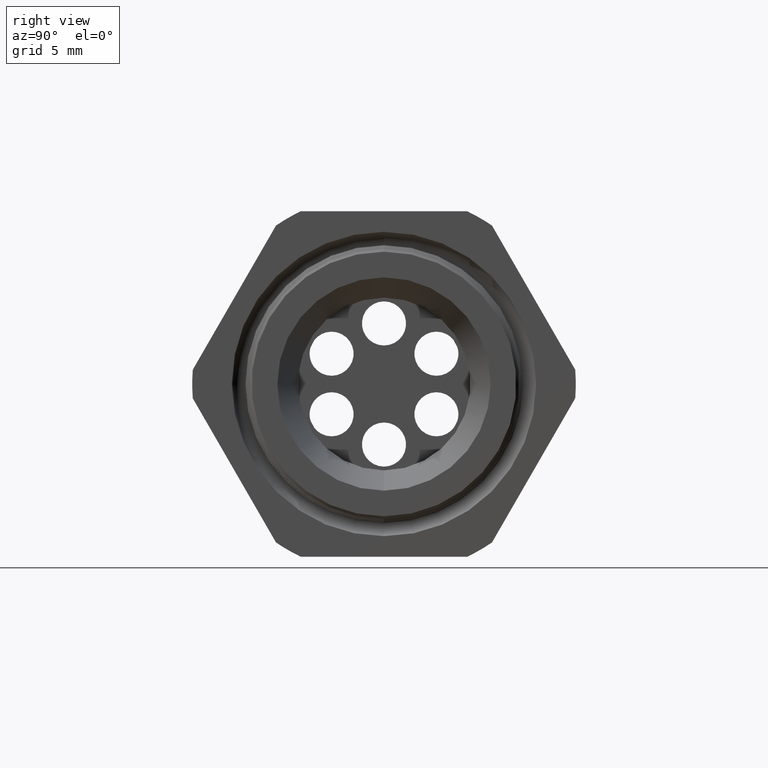
[diagram: clean part render]
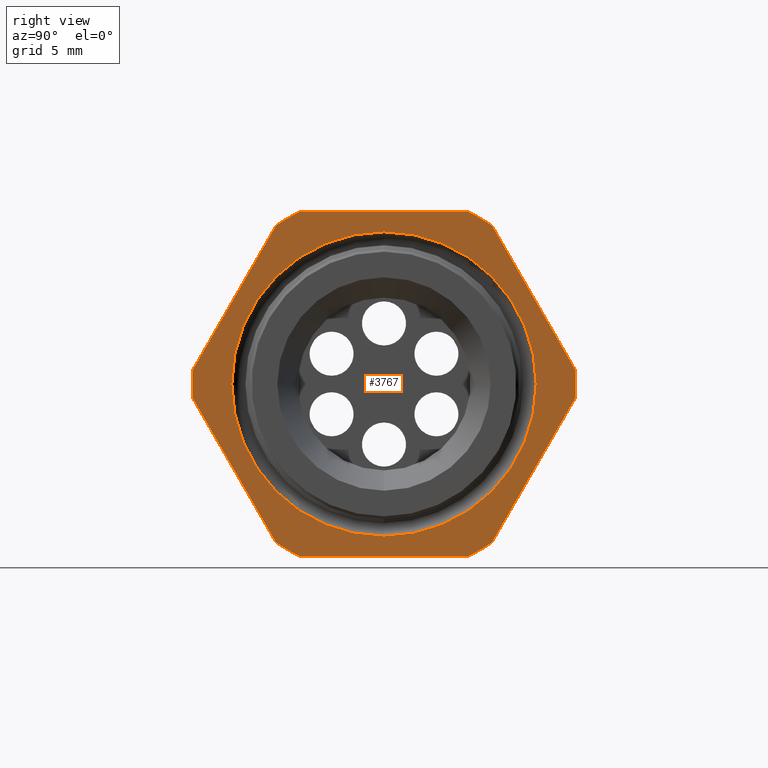
[diagram: same view with one face highlighted and labeled with its STEP entity id]
A machine part, right view. The second image highlights one B-rep face of the part: STEP entity #3767.
In plain terms, the highlighted planar face has unit normal (1, 0, 0).
Its self-contained STEP definition (entity closure, byte-faithful):
#1550 = CARTESIAN_POINT ( 'NONE',  ( -0.3100000000000000000, 0.0000000000000000000, 0.0000000000000000000 ) ) ;
#1551 = AXIS2_PLACEMENT_3D ( 'NONE', #1550, #1613, #1612 ) ;
#1552 = CIRCLE ( 'NONE', #1551, 0.5217000000000000500 ) ;
#1583 = CARTESIAN_POINT ( 'NONE',  ( -0.3100000000000000000, 0.5202473208008777700, -0.03890520787129494300 ) ) ;
#1584 = CARTESIAN_POINT ( 'NONE',  ( -0.3100000000000000000, 0.2938165587564948700, -0.4310947921287048800 ) ) ;
#1585 = DIRECTION ( 'NONE',  ( 0.0000000000000000000, 0.4999999999999998300, 0.8660254037844388200 ) ) ;
#1586 = VECTOR ( 'NONE', #1585, 39.37007874015748100 ) ;
#1587 = CARTESIAN_POINT ( 'NONE',  ( -0.3100000000000000000, 0.6420319397786861100, 0.1720319397786860800 ) ) ;
#1588 = LINE ( 'NONE', #1587, #1586 ) ;
#1589 = DIRECTION ( 'NONE',  ( 0.0000000000000000000, 0.0000000000000000000, -1.000000000000000000 ) ) ;
#1590 = DIRECTION ( 'NONE',  ( 1.000000000000000000, 0.0000000000000000000, 0.0000000000000000000 ) ) ;
#1591 = CARTESIAN_POINT ( 'NONE',  ( -0.3100000000000000000, 0.0000000000000000000, 0.0000000000000000000 ) ) ;
#1592 = AXIS2_PLACEMENT_3D ( 'NONE', #1591, #1590, #1589 ) ;
#1593 = CIRCLE ( 'NONE', #1592, 0.4140490524579808500 ) ;
#1594 = DIRECTION ( 'NONE',  ( 0.0000000000000000000, 0.0000000000000000000, -1.000000000000000000 ) ) ;
#1595 = DIRECTION ( 'NONE',  ( 1.000000000000000000, 0.0000000000000000000, 0.0000000000000000000 ) ) ;
#1596 = CARTESIAN_POINT ( 'NONE',  ( -0.3100000000000000000, 0.9399999999999999500, 0.0000000000000000000 ) ) ;
#1597 = AXIS2_PLACEMENT_3D ( 'NONE', #1596, #1595, #1594 ) ;
#1598 = PLANE ( 'NONE',  #1597 ) ;
#1599 = FACE_OUTER_BOUND ( 'NONE', #3772, .T. ) ;
#1600 = FACE_BOUND ( 'NONE', #3768, .T. ) ;
#1606 = CARTESIAN_POINT ( 'NONE',  ( -0.3100000000000000000, -0.5202473208008777700, 0.03890520787129464500 ) ) ;
#1607 = DIRECTION ( 'NONE',  ( 0.0000000000000000000, -0.4999999999999998300, -0.8660254037844388200 ) ) ;
#1608 = VECTOR ( 'NONE', #1607, 39.37007874015748100 ) ;
#1609 = CARTESIAN_POINT ( 'NONE',  ( -0.3100000000000000000, -0.1720319397786864200, 0.6420319397786858900 ) ) ;
#1610 = LINE ( 'NONE', #1609, #1608 ) ;
#1611 = CARTESIAN_POINT ( 'NONE',  ( -0.3100000000000000000, -0.2938165587564945900, 0.4310947921287050500 ) ) ;
#1612 = DIRECTION ( 'NONE',  ( 0.0000000000000000000, 0.0000000000000000000, -1.000000000000000000 ) ) ;
#1613 = DIRECTION ( 'NONE',  ( 1.000000000000000000, 0.0000000000000000000, 0.0000000000000000000 ) ) ;
#1638 = CARTESIAN_POINT ( 'NONE',  ( -0.3100000000000000000, 0.5202473208008776600, 0.03890520787129531800 ) ) ;
#1639 = DIRECTION ( 'NONE',  ( 0.0000000000000000000, 0.0000000000000000000, -1.000000000000000000 ) ) ;
#1640 = DIRECTION ( 'NONE',  ( 1.000000000000000000, 0.0000000000000000000, 0.0000000000000000000 ) ) ;
#1641 = CARTESIAN_POINT ( 'NONE',  ( -0.3100000000000000000, 0.0000000000000000000, 0.0000000000000000000 ) ) ;
#1642 = AXIS2_PLACEMENT_3D ( 'NONE', #1641, #1640, #1639 ) ;
#1643 = CIRCLE ( 'NONE', #1642, 0.5217000000000000500 ) ;
#1679 = CIRCLE ( 'NONE', #1736, 0.5217000000000000500 ) ;
#1698 = DIRECTION ( 'NONE',  ( 0.0000000000000000000, 0.0000000000000000000, -1.000000000000000000 ) ) ;
#1699 = DIRECTION ( 'NONE',  ( 1.000000000000000000, 0.0000000000000000000, 0.0000000000000000000 ) ) ;
#1700 = CARTESIAN_POINT ( 'NONE',  ( -0.3100000000000000000, 0.0000000000000000000, 0.0000000000000000000 ) ) ;
#1701 = AXIS2_PLACEMENT_3D ( 'NONE', #1700, #1699, #1698 ) ;
#1702 = CIRCLE ( 'NONE', #1701, 0.5217000000000000500 ) ;
#1708 = CARTESIAN_POINT ( 'NONE',  ( -0.3100000000000000000, 0.0000000000000000000, 0.0000000000000000000 ) ) ;
#1709 = AXIS2_PLACEMENT_3D ( 'NONE', #1708, #1771, #1770 ) ;
#1710 = CIRCLE ( 'NONE', #1709, 0.5217000000000000500 ) ;
#1711 = CARTESIAN_POINT ( 'NONE',  ( -0.3100000000000000000, 0.2938165587564947600, 0.4310947921287048800 ) ) ;
#1712 = DIRECTION ( 'NONE',  ( 0.0000000000000000000, -0.5000000000000001100, 0.8660254037844384900 ) ) ;
#1713 = VECTOR ( 'NONE', #1712, 39.37007874015748900 ) ;
#1714 = CARTESIAN_POINT ( 'NONE',  ( -0.3100000000000000000, 0.6420319397786862200, -0.1720319397786861700 ) ) ;
#1715 = LINE ( 'NONE', #1714, #1713 ) ;
#1716 = CARTESIAN_POINT ( 'NONE',  ( -0.3100000000000000000, 0.2264307620443831200, -0.4700000000000000300 ) ) ;
#1717 = DIRECTION ( 'NONE',  ( 0.0000000000000000000, 1.000000000000000000, 0.0000000000000000000 ) ) ;
#1718 = VECTOR ( 'NONE', #1717, 39.37007874015748100 ) ;
#1719 = CARTESIAN_POINT ( 'NONE',  ( -0.3100000000000000000, 0.9399999999999999500, -0.4700000000000000300 ) ) ;
#1720 = LINE ( 'NONE', #1719, #1718 ) ;
#1721 = CARTESIAN_POINT ( 'NONE',  ( -0.3100000000000000000, -0.2264307620443830900, -0.4700000000000000300 ) ) ;
#1722 = DIRECTION ( 'NONE',  ( 0.0000000000000000000, 0.0000000000000000000, -1.000000000000000000 ) ) ;
#1723 = DIRECTION ( 'NONE',  ( 1.000000000000000000, 0.0000000000000000000, 0.0000000000000000000 ) ) ;
#1724 = CARTESIAN_POINT ( 'NONE',  ( -0.3100000000000000000, 0.0000000000000000000, 0.0000000000000000000 ) ) ;
#1725 = AXIS2_PLACEMENT_3D ( 'NONE', #1724, #1723, #1722 ) ;
#1726 = CIRCLE ( 'NONE', #1725, 0.5217000000000000500 ) ;
#1727 = CARTESIAN_POINT ( 'NONE',  ( -0.3100000000000000000, -0.2938165587564942600, -0.4310947921287053300 ) ) ;
#1728 = DIRECTION ( 'NONE',  ( 0.0000000000000000000, 0.5000000000000001100, -0.8660254037844384900 ) ) ;
#1729 = VECTOR ( 'NONE', #1728, 39.37007874015748900 ) ;
#1730 = CARTESIAN_POINT ( 'NONE',  ( -0.3100000000000000000, -0.1720319397786861700, -0.6420319397786864400 ) ) ;
#1731 = LINE ( 'NONE', #1730, #1729 ) ;
#1732 = CARTESIAN_POINT ( 'NONE',  ( -0.3100000000000000000, -0.5202473208008777700, -0.03890520787129495000 ) ) ;
#1733 = DIRECTION ( 'NONE',  ( 0.0000000000000000000, 0.0000000000000000000, -1.000000000000000000 ) ) ;
#1734 = DIRECTION ( 'NONE',  ( 1.000000000000000000, 0.0000000000000000000, 0.0000000000000000000 ) ) ;
#1735 = CARTESIAN_POINT ( 'NONE',  ( -0.3100000000000000000, 0.0000000000000000000, 0.0000000000000000000 ) ) ;
#1736 = AXIS2_PLACEMENT_3D ( 'NONE', #1735, #1734, #1733 ) ;
#1764 = CARTESIAN_POINT ( 'NONE',  ( -0.3100000000000000000, -0.2264307620443835300, 0.4699999999999997000 ) ) ;
#1765 = DIRECTION ( 'NONE',  ( 0.0000000000000000000, -1.000000000000000000, 0.0000000000000000000 ) ) ;
#1766 = VECTOR ( 'NONE', #1765, 39.37007874015748100 ) ;
#1767 = CARTESIAN_POINT ( 'NONE',  ( -0.3100000000000000000, 0.9399999999999999500, 0.4699999999999999200 ) ) ;
#1768 = LINE ( 'NONE', #1767, #1766 ) ;
#1769 = CARTESIAN_POINT ( 'NONE',  ( -0.3100000000000000000, 0.2264307620443832800, 0.4699999999999999200 ) ) ;
#1770 = DIRECTION ( 'NONE',  ( 0.0000000000000000000, 0.0000000000000000000, -1.000000000000000000 ) ) ;
#1771 = DIRECTION ( 'NONE',  ( 1.000000000000000000, 0.0000000000000000000, 0.0000000000000000000 ) ) ;
#2637 = CARTESIAN_POINT ( 'NONE',  ( -0.3100000000000000000, 5.070638467826607500E-017, 0.4140490524579807900 ) ) ;
#2639 = CARTESIAN_POINT ( 'NONE',  ( -0.3100000000000000000, 0.0000000000000000000, -0.4140490524579807900 ) ) ;
#2640 = DIRECTION ( 'NONE',  ( 0.0000000000000000000, 0.0000000000000000000, -1.000000000000000000 ) ) ;
#2641 = DIRECTION ( 'NONE',  ( 1.000000000000000000, 0.0000000000000000000, 0.0000000000000000000 ) ) ;
#2642 = AXIS2_PLACEMENT_3D ( 'NONE', #2650, #2641, #2640 ) ;
#2643 = CIRCLE ( 'NONE', #2642, 0.4140490524579808500 ) ;
#2650 = CARTESIAN_POINT ( 'NONE',  ( -0.3100000000000000000, 0.0000000000000000000, 0.0000000000000000000 ) ) ;
#3760 = EDGE_CURVE ( 'NONE', #3841, #3761, #1552, .T. ) ;
#3761 = VERTEX_POINT ( 'NONE', #1611 ) ;
#3762 = ORIENTED_EDGE ( 'NONE', *, *, #3763, .T. ) ;
#3763 = EDGE_CURVE ( 'NONE', #3761, #3764, #1610, .T. ) ;
#3764 = VERTEX_POINT ( 'NONE', #1606 ) ;
#3767 = ADVANCED_FACE ( 'NONE', ( #1600, #1599 ), #1598, .T. ) ;
#3768 = EDGE_LOOP ( 'NONE', ( #3769, #3771 ) ) ;
#3769 = ORIENTED_EDGE ( 'NONE', *, *, #3770, .F. ) ;
#3770 = EDGE_CURVE ( 'NONE', #4942, #4946, #1593, .T. ) ;
#3771 = ORIENTED_EDGE ( 'NONE', *, *, #4941, .F. ) ;
#3772 = EDGE_LOOP ( 'NONE', ( #3773, #3777, #3833, #3836, #3839, #3842, #3762, #3820, #3823, #3826, #3829, #3807 ) ) ;
#3773 = ORIENTED_EDGE ( 'NONE', *, *, #3774, .T. ) ;
#3774 = EDGE_CURVE ( 'NONE', #3775, #3776, #1588, .T. ) ;
#3775 = VERTEX_POINT ( 'NONE', #1584 ) ;
#3776 = VERTEX_POINT ( 'NONE', #1583 ) ;
#3777 = ORIENTED_EDGE ( 'NONE', *, *, #3778, .T. ) ;
#3778 = EDGE_CURVE ( 'NONE', #3776, #3779, #1643, .T. ) ;
#3779 = VERTEX_POINT ( 'NONE', #1638 ) ;
#3807 = ORIENTED_EDGE ( 'NONE', *, *, #3808, .T. ) ;
#3808 = EDGE_CURVE ( 'NONE', #3831, #3775, #1702, .T. ) ;
#3820 = ORIENTED_EDGE ( 'NONE', *, *, #3821, .T. ) ;
#3821 = EDGE_CURVE ( 'NONE', #3764, #3822, #1679, .T. ) ;
#3822 = VERTEX_POINT ( 'NONE', #1732 ) ;
#3823 = ORIENTED_EDGE ( 'NONE', *, *, #3824, .T. ) ;
#3824 = EDGE_CURVE ( 'NONE', #3822, #3825, #1731, .T. ) ;
#3825 = VERTEX_POINT ( 'NONE', #1727 ) ;
#3826 = ORIENTED_EDGE ( 'NONE', *, *, #3827, .T. ) ;
#3827 = EDGE_CURVE ( 'NONE', #3825, #3828, #1726, .T. ) ;
#3828 = VERTEX_POINT ( 'NONE', #1721 ) ;
#3829 = ORIENTED_EDGE ( 'NONE', *, *, #3830, .T. ) ;
#3830 = EDGE_CURVE ( 'NONE', #3828, #3831, #1720, .T. ) ;
#3831 = VERTEX_POINT ( 'NONE', #1716 ) ;
#3833 = ORIENTED_EDGE ( 'NONE', *, *, #3834, .T. ) ;
#3834 = EDGE_CURVE ( 'NONE', #3779, #3835, #1715, .T. ) ;
#3835 = VERTEX_POINT ( 'NONE', #1711 ) ;
#3836 = ORIENTED_EDGE ( 'NONE', *, *, #3837, .T. ) ;
#3837 = EDGE_CURVE ( 'NONE', #3835, #3838, #1710, .T. ) ;
#3838 = VERTEX_POINT ( 'NONE', #1769 ) ;
#3839 = ORIENTED_EDGE ( 'NONE', *, *, #3840, .T. ) ;
#3840 = EDGE_CURVE ( 'NONE', #3838, #3841, #1768, .T. ) ;
#3841 = VERTEX_POINT ( 'NONE', #1764 ) ;
#3842 = ORIENTED_EDGE ( 'NONE', *, *, #3760, .T. ) ;
#4941 = EDGE_CURVE ( 'NONE', #4946, #4942, #2643, .T. ) ;
#4942 = VERTEX_POINT ( 'NONE', #2639 ) ;
#4946 = VERTEX_POINT ( 'NONE', #2637 ) ;